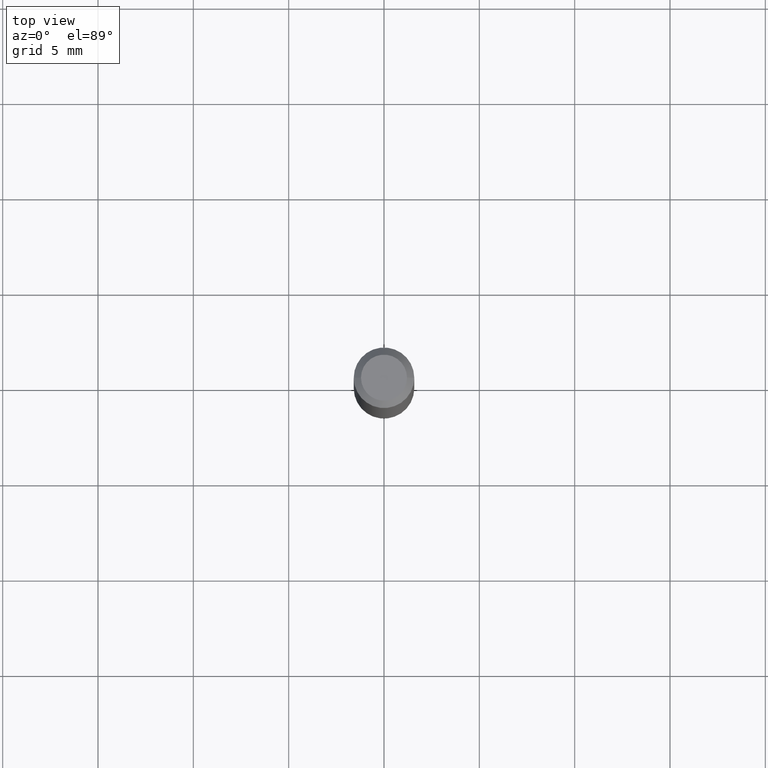
[diagram: clean part render]
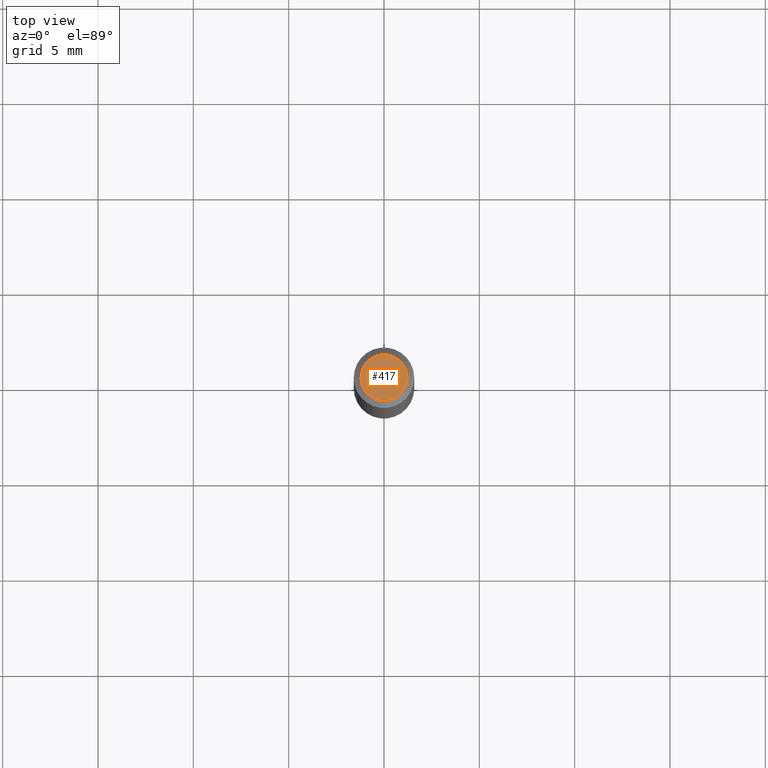
[diagram: same view with one face highlighted and labeled with its STEP entity id]
A machine part, top view. The second image highlights one B-rep face of the part: STEP entity #417.
In plain terms, the highlighted planar face has unit normal (0, -0, -1).
Its self-contained STEP definition (entity closure, byte-faithful):
#19 = DIRECTION ( 'NONE',  ( -2.445468806185136597E-29, 3.491481338843145583E-15, 1.000000000000000000 ) ) ;
#39 = ORIENTED_EDGE ( 'NONE', *, *, #382, .T. ) ;
#62 = CIRCLE ( 'NONE', #410, 0.04749999999999999362 ) ;
#98 = EDGE_CURVE ( 'NONE', #333, #322, #204, .T. ) ;
#102 = CARTESIAN_POINT ( 'NONE',  ( -0.04749999999999999362, 3.578768372314216422E-16, 3.292288316969860333E-16 ) ) ;
#134 = CARTESIAN_POINT ( 'NONE',  ( 3.316907271900976096E-16, 0.04749999999999999362, -1.230947746555162994E-18 ) ) ;
#166 = DIRECTION ( 'NONE',  ( 1.000000000000000000, -6.982962677686267499E-15, 4.852736867747366768E-29 ) ) ;
#194 = FACE_OUTER_BOUND ( 'NONE', #464, .T. ) ;
#204 = CIRCLE ( 'NONE', #408, 0.04749999999999999362 ) ;
#227 = ORIENTED_EDGE ( 'NONE', *, *, #98, .T. ) ;
#234 = CARTESIAN_POINT ( 'NONE',  ( -8.051188380117617343E-45, 1.149496322079166104E-30, 3.292288316969884985E-16 ) ) ;
#265 = DIRECTION ( 'NONE',  ( 1.000000000000000000, -6.982962677686267499E-15, 4.852736867747366768E-29 ) ) ;
#322 = VERTEX_POINT ( 'NONE', #102 ) ;
#333 = VERTEX_POINT ( 'NONE', #416 ) ;
#335 = DIRECTION ( 'NONE',  ( -1.000000000000000000, 6.982962677686265922E-15, -4.876176775795935793E-29 ) ) ;
#376 = CARTESIAN_POINT ( 'NONE',  ( -8.051188380117617343E-45, 1.149496322079166104E-30, 3.292288316969884985E-16 ) ) ;
#382 = EDGE_CURVE ( 'NONE', #322, #333, #62, .T. ) ;
#408 = AXIS2_PLACEMENT_3D ( 'NONE', #234, #19, #166 ) ;
#410 = AXIS2_PLACEMENT_3D ( 'NONE', #376, #453, #265 ) ;
#416 = CARTESIAN_POINT ( 'NONE',  ( 0.04749999999999999362, -4.035134999187572707E-16, 3.292288316969910130E-16 ) ) ;
#417 = ADVANCED_FACE ( 'NONE', ( #194 ), #455, .F. ) ;
#423 = DIRECTION ( 'NONE',  ( 2.438088387897960049E-29, -3.491481338843145188E-15, -1.000000000000000000 ) ) ;
#453 = DIRECTION ( 'NONE',  ( -2.445468806185136597E-29, 3.491481338843145583E-15, 1.000000000000000000 ) ) ;
#454 = AXIS2_PLACEMENT_3D ( 'NONE', #134, #423, #335 ) ;
#455 = PLANE ( 'NONE',  #454 ) ;
#464 = EDGE_LOOP ( 'NONE', ( #39, #227 ) ) ;